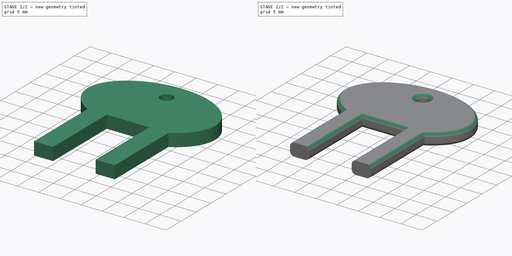
[diagram: build sequence overview — one tinted view per stage of 2, left to right]
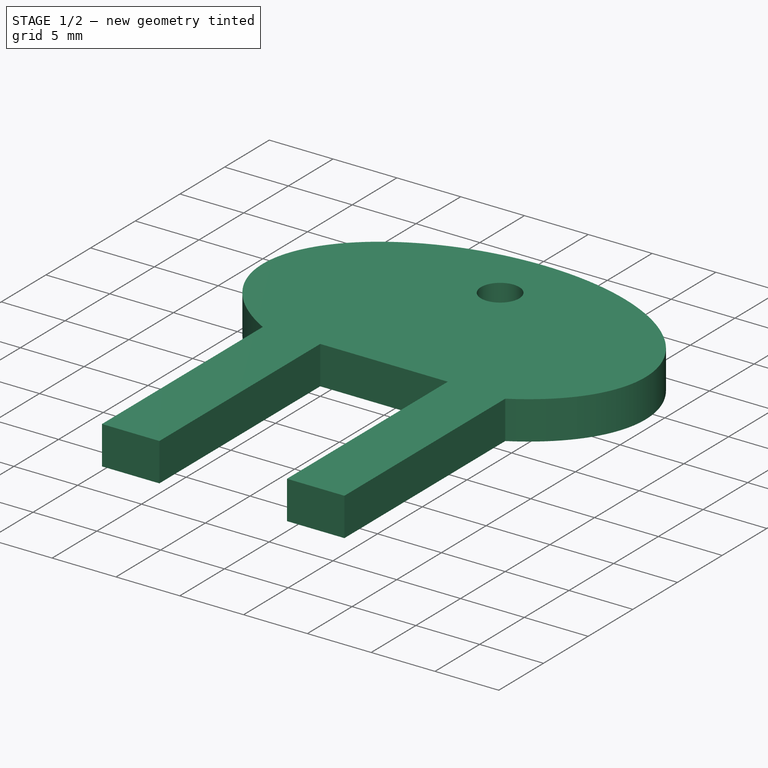
[diagram: stage 1 of 2 — iso view after this stage's code; geometry added in this stage tinted green]
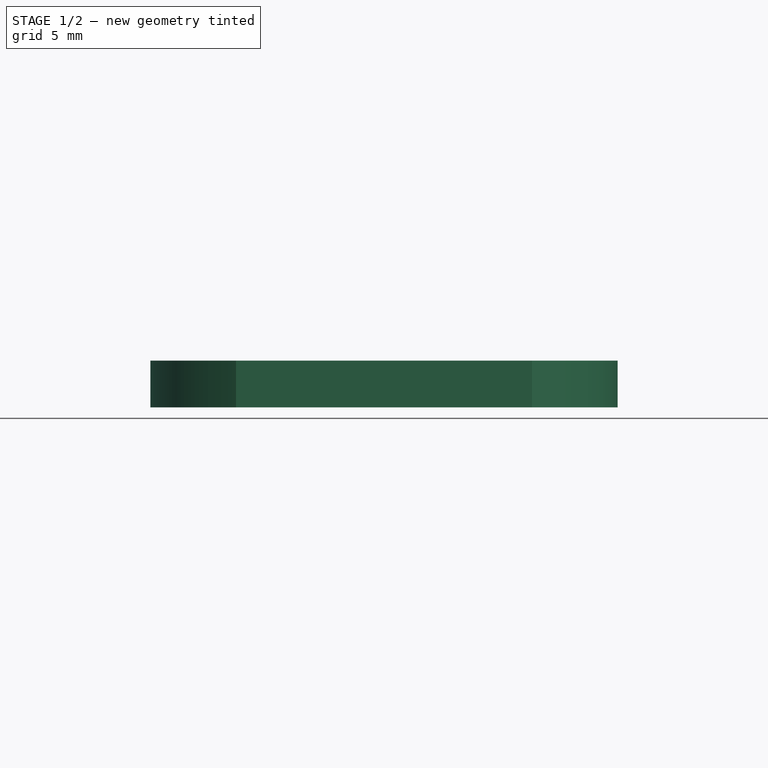
[diagram: stage 1 of 2 — front view after this stage's code; geometry added in this stage tinted green]
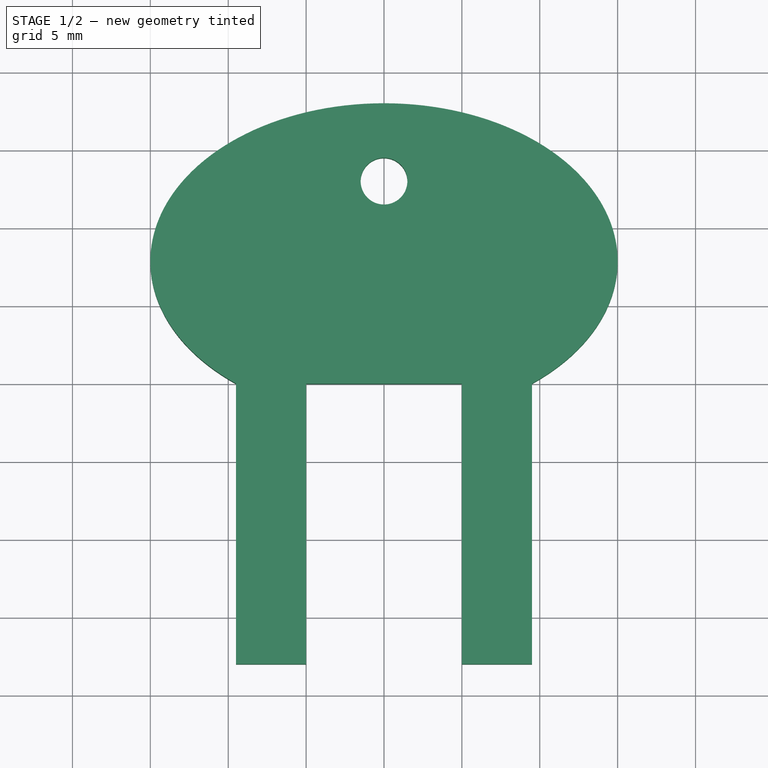
[diagram: stage 1 of 2 — top view after this stage's code; geometry added in this stage tinted green]
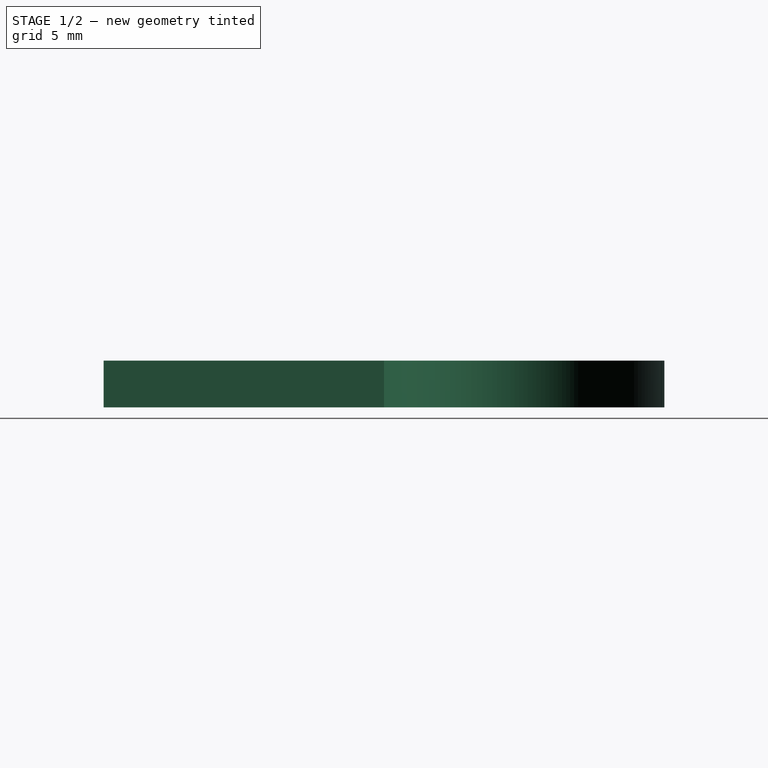
[diagram: stage 1 of 2 — right view after this stage's code; geometry added in this stage tinted green]
FCSTD DOCUMENT  (FreeCAD 0.18R16131 (Git))
Label: toilet-paper-dispenser-opener-key
License: All rights reserved
LicenseURL: http://en.wikipedia.org/wiki/All_rights_reserved
objects: Spreadsheet::Sheet×1, Sketcher::SketchObject×1, PartDesign::Pad×1, PartDesign::Fillet×1, PartDesign::Body×1
note: 5 computed .brp shape members not serialized (recipe doc carries the construction recipe); baked Part::Feature solids carry a one-line shape summary decoded from their .brp

FEATURE [Spreadsheet::Sheet] Spreadsheet
  cells = A1=Depth; B1(Depth)==3mm; A2=PinHeight; B2(PinHeight)==18mm; A3=PinWidth; B3(PinWidth)==4.5mm; A4=PinGapWidth; B4(PinGapWidth)==10mm; A5=HeadHeight; B5(HeadHeight)==18mm; A6=HeadWidth; B6(HeadWidth)==30mm; A7=HoleTopDistance; B7(HoleTopDistance)==5mm; A8=HoleDiameter; B8(HoleDiameter)==3mm; A9=FilletSize; B9(FilletSize)==1mm
FEATURE [Sketcher::SketchObject] Sketch
  MapMode = 5
  Support = -> [XY_Plane]
  expr: Constraints[32] = Spreadsheet.HoleTopDistance
  expr: Constraints[30] = Spreadsheet.HoleDiameter
  expr: Constraints[28] = Spreadsheet.HeadHeight
  expr: Constraints[19] = Spreadsheet.PinHeight
  expr: Constraints[18] = Spreadsheet.PinGapWidth
  expr: Constraints[27] = Spreadsheet.HeadWidth
  expr: Constraints[17] = Spreadsheet.PinWidth
  sketch-geometry (13):
    g0: LineSegment StartX=-9.5 StartY=0 StartZ=0 EndX=-9.5 EndY=-18 EndZ=0
    g1: LineSegment StartX=-9.5 StartY=-18 StartZ=0 EndX=-5 EndY=-18 EndZ=0
    g2: LineSegment StartX=-5 StartY=-18 StartZ=0 EndX=-5 EndY=0 EndZ=0
    g3: LineSegment StartX=-5 StartY=0 StartZ=0 EndX=5 EndY=0 EndZ=0
    g4: LineSegment StartX=5 StartY=0 StartZ=0 EndX=5 EndY=-18 EndZ=0
    g5: LineSegment StartX=5 StartY=-18 StartZ=0 EndX=9.5 EndY=-18 EndZ=0
    g6: LineSegment StartX=9.5 StartY=-18 StartZ=0 EndX=9.5 EndY=0 EndZ=0
    g7: ArcOfEllipse CenterX=-1.671e-13 CenterY=7.85275 CenterZ=0 NormalX=0 NormalY=0 NormalZ=1 MajorRadius=15 MinorRadius=10.1473 AngleXU=0 StartAngle=5.39824 EndAngle=10.3097
    g8: LineSegment [constr] StartX=15 StartY=7.85275 StartZ=0 EndX=-15 EndY=7.85275 EndZ=0
    g9: LineSegment [constr] StartX=-1.67e-13 StartY=18 StartZ=0 EndX=-1.673e-13 EndY=-2.29451 EndZ=0
    g10: GeomPoint X=11.0469 Y=7.85275 Z=0
    g11: GeomPoint X=-11.0469 Y=7.85275 Z=0
    g12: Circle CenterX=-1.67e-13 CenterY=13 CenterZ=0 NormalX=0 NormalY=0 NormalZ=1 AngleXU=0 Radius=1.5
  constraints (30):
    c: Vertical(g0)
    c: Coincident(g0,g1)
    c: Coincident(g1,g2)
    c: Vertical(g2)
    c: Coincident(g2,g3)
    c: Horizontal(g3)
    c: Coincident(g3,g4)
    c: Coincident(g4,g5)
    c: Horizontal(g5)
    c: Coincident(g5,g6)
    c: Horizontal(g1)
    c: Vertical(g4)
    c: Vertical(g6)
    c: Horizontal(g0,g2)
    c: Horizontal(g3,g6)
    c: Horizontal(g1,g4)
    c: Equal(g1,g5)
    c: DistanceX(g0,g1) = 4.5
    c: DistanceX(g2,g3) = 10
    c: DistanceY(g0,g0) = 18
    c: InternalAlignment(g8-g11 -> g7) x4
    c: Coincident(g7,g0)
    c: Coincident(g7,g6)
    c: Horizontal(g8)
    c: DistanceX(g8,g8) = 30
    c: DistanceY(g3,g9) = 18
    c: Symmetric(g3,g2,g-1)
    c: Diameter(g12) = 3
    c: Vertical(g12,g9)
    c: DistanceY(g12,g9) = 5
FEATURE [PartDesign::Pad] Pad
  Length = 3
  Length2 = 100
  Profile = -> Sketch
  Type = 0
  expr: Length = Spreadsheet.Depth
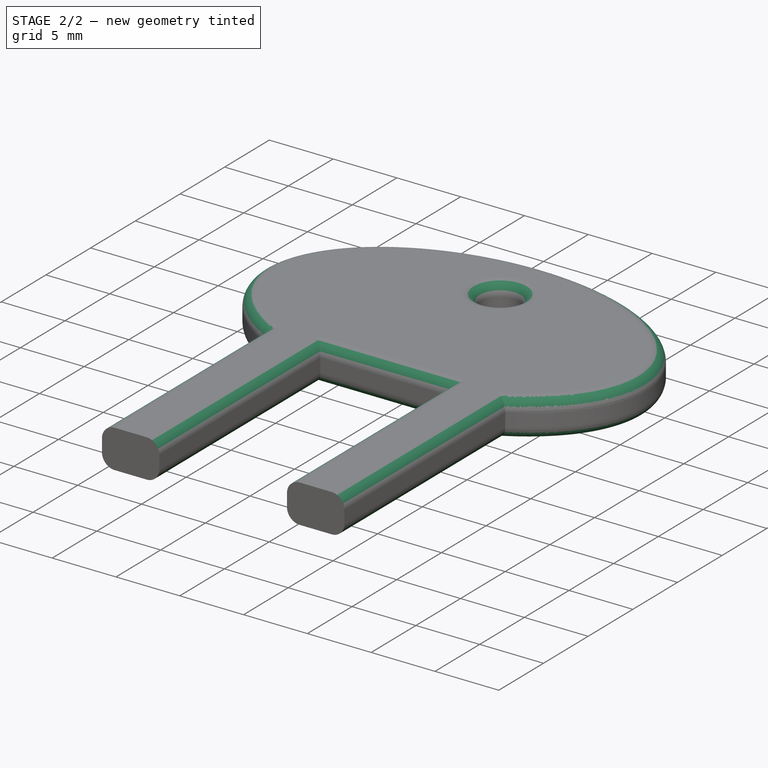
[diagram: stage 2 of 2 — iso view after this stage's code; geometry added in this stage tinted green]
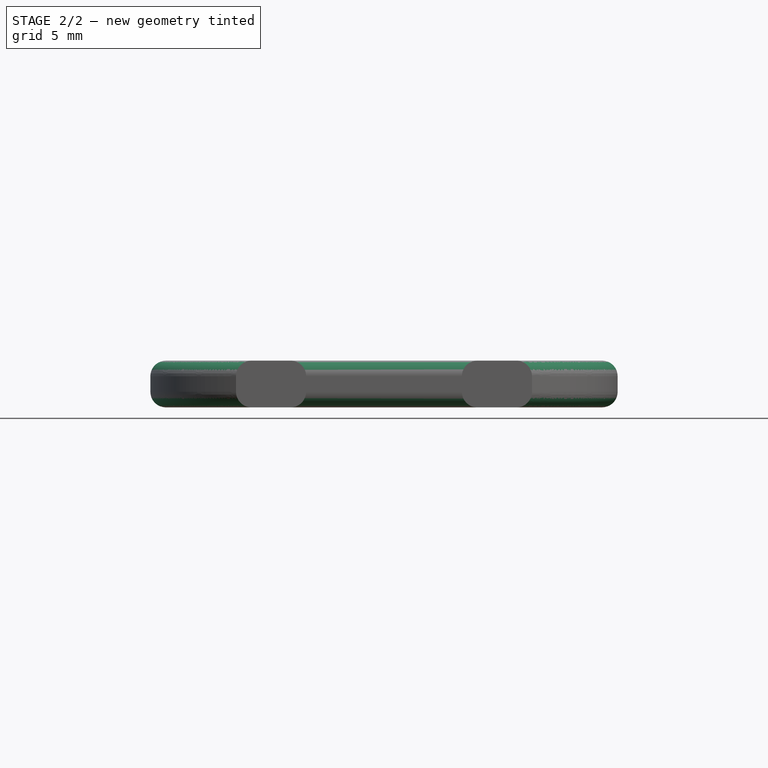
[diagram: stage 2 of 2 — front view after this stage's code; geometry added in this stage tinted green]
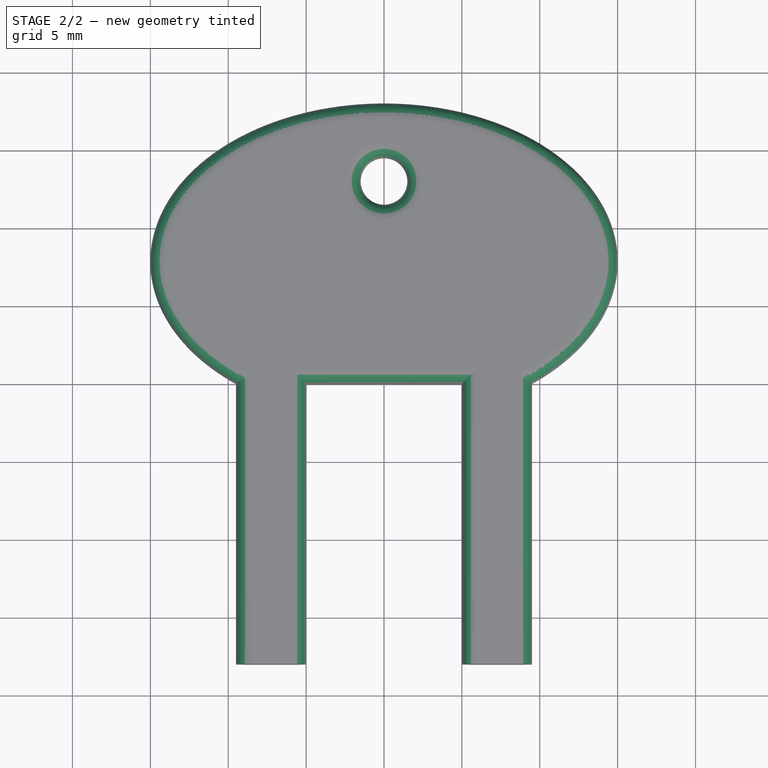
[diagram: stage 2 of 2 — top view after this stage's code; geometry added in this stage tinted green]
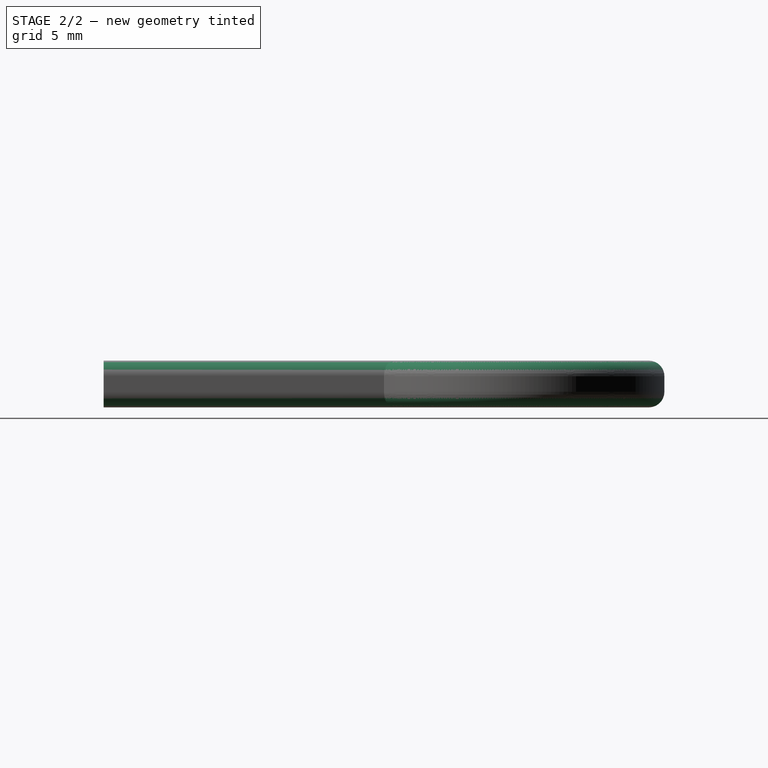
[diagram: stage 2 of 2 — right view after this stage's code; geometry added in this stage tinted green]
FEATURE [PartDesign::Fillet] Fillet
  Base = -> Pad [Edge4,Edge10,Edge13,Edge16,Edge24,Edge22,Edge27,Edge23,Edge26,Edge3,Edge9,Edge12,Edge15,Edge21]
  BaseFeature = -> Pad
  Radius = 1
  expr: Radius = Spreadsheet.FilletSize
FEATURE [PartDesign::Body] Body
  Group = -> [Sketch,Pad,Fillet]
  Origin = -> Origin
  Tip = -> Fillet
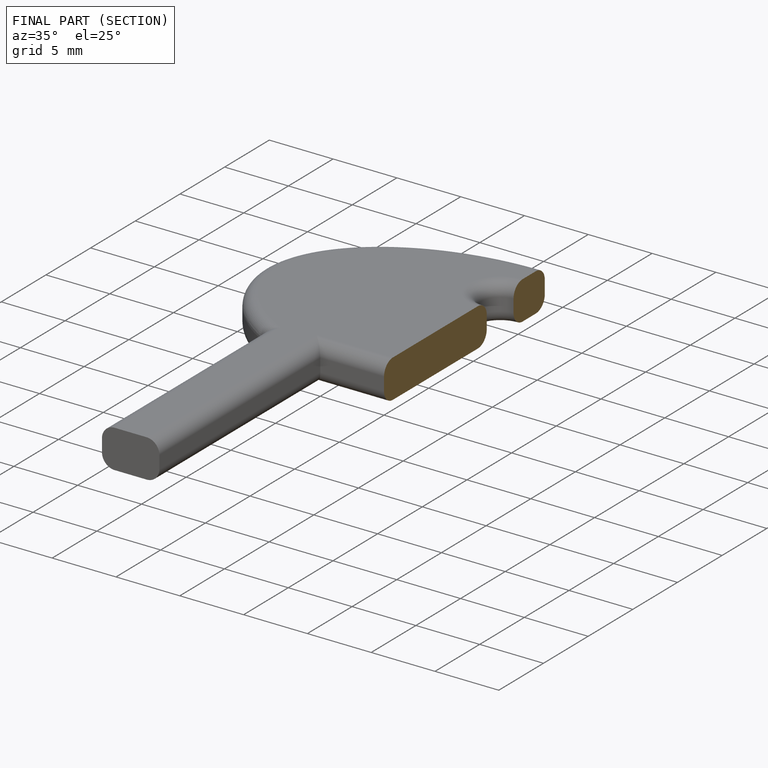
[diagram: finished part — half-section view (interior)]
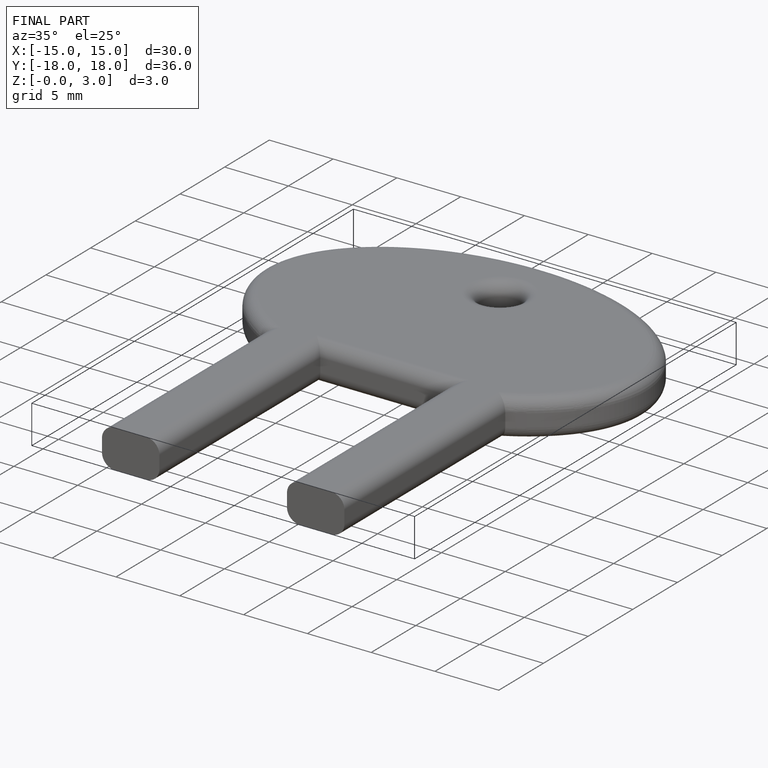
[diagram: finished part — iso view with bounding-box wireframe]
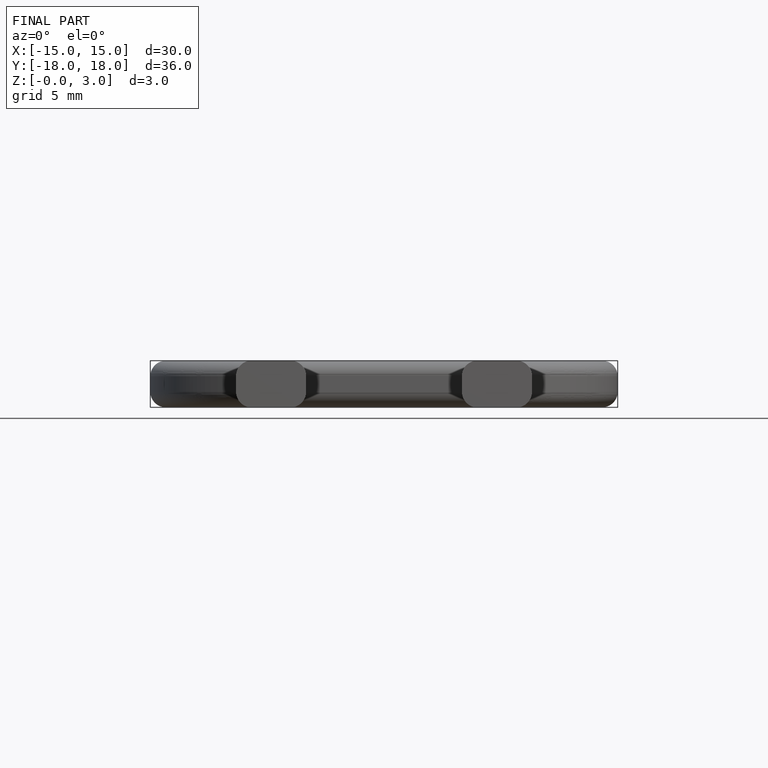
[diagram: finished part — front view with bounding-box wireframe]
